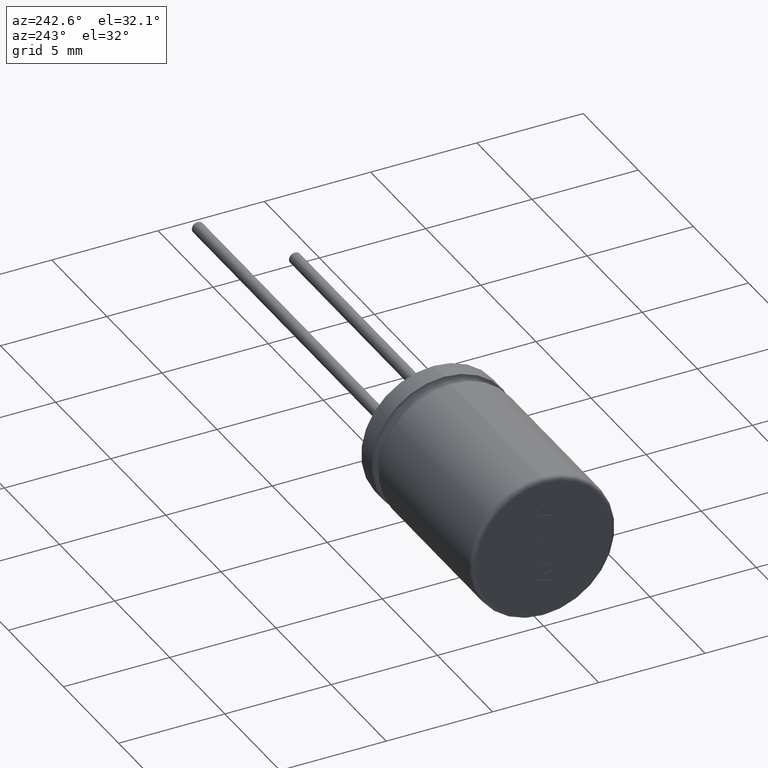
[diagram: clean part render]
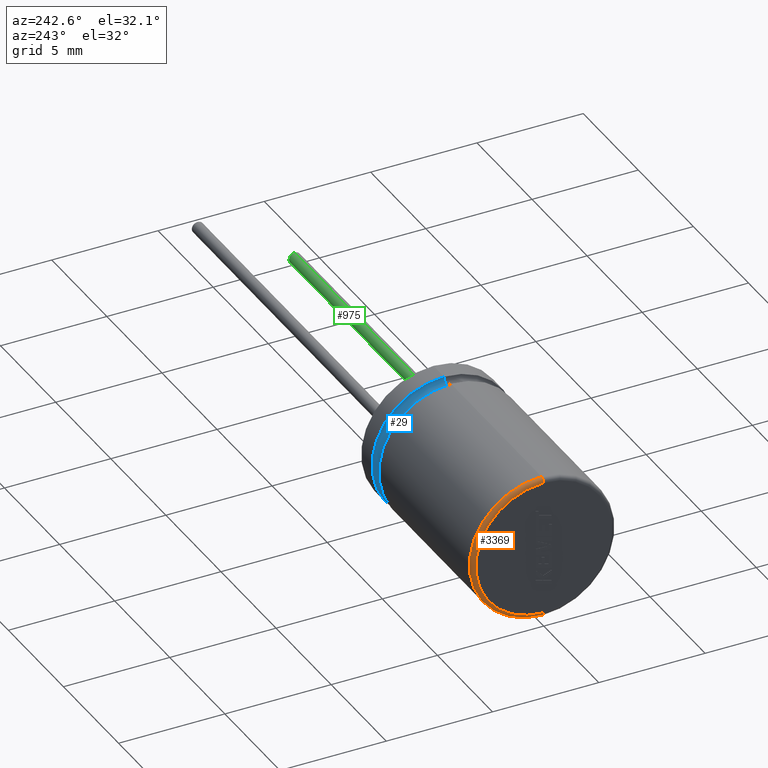
[diagram: same view with three faces highlighted in distinct colors, each labeled with its STEP entity id]
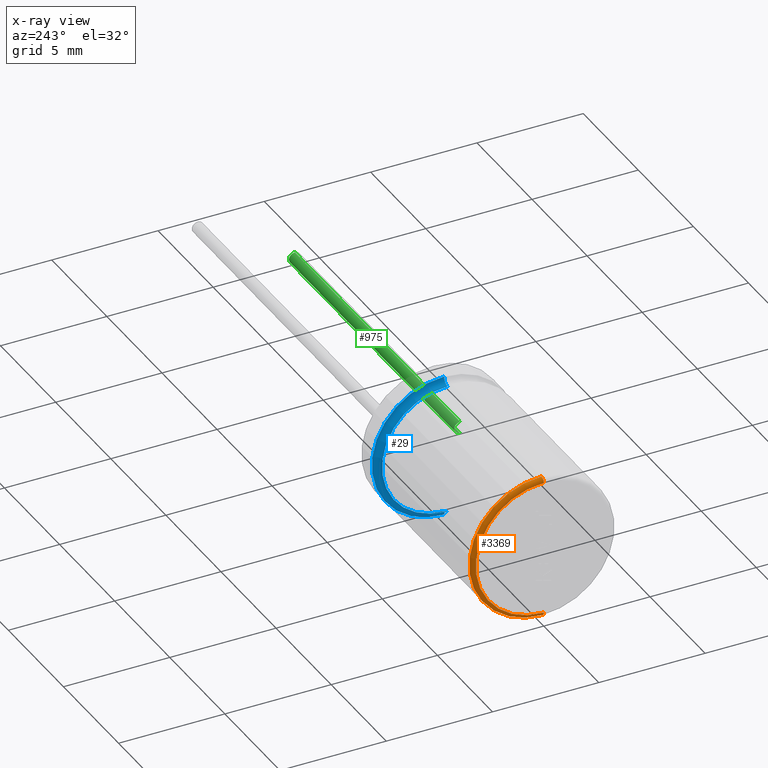
[diagram: x-ray of the same camera — body ghosted, the three highlighted faces saturated]
A machine part, auxiliary view with three faces highlighted in distinct colors.
The next image is the same camera in x-ray (body ghosted, the three faces saturated) — at least one of them is partly hidden behind the body in this view.
Their STEP definitions:

[orange] entity #3369 — the highlighted toroidal blend (fillet) surface has major radius 3.2 mm and minor (blend) radius 0.2 mm.
#6 = CARTESIAN_POINT ( 'NONE',  ( 0.0000000000000000000, 0.0000000000000000000, 0.0000000000000000000 ) ) ;
#113 = AXIS2_PLACEMENT_3D ( 'NONE', #216, #715, #2581 ) ;
#216 = CARTESIAN_POINT ( 'NONE',  ( 0.2000000000000005100, 0.0000000000000000000, -3.199999999999999700 ) ) ;
#279 = ORIENTED_EDGE ( 'NONE', *, *, #3379, .F. ) ;
#289 = CARTESIAN_POINT ( 'NONE',  ( 0.0000000000000000000, 4.041334437186265000E-016, 3.199999999999999700 ) ) ;
#463 = CARTESIAN_POINT ( 'NONE',  ( 0.0000000000000000000, 0.0000000000000000000, -3.199999999999999700 ) ) ;
#597 = DIRECTION ( 'NONE',  ( 0.0000000000000000000, 1.224646799147353200E-016, 1.000000000000000000 ) ) ;
#715 = DIRECTION ( 'NONE',  ( 0.0000000000000000000, -1.000000000000000000, 0.0000000000000000000 ) ) ;
#736 = VERTEX_POINT ( 'NONE', #289 ) ;
#1004 = VERTEX_POINT ( 'NONE', #463 ) ;
#1081 = EDGE_CURVE ( 'NONE', #736, #1004, #1278, .T. ) ;
#1210 = AXIS2_PLACEMENT_3D ( 'NONE', #3123, #2820, #1235 ) ;
#1235 = DIRECTION ( 'NONE',  ( 0.0000000000000000000, 0.0000000000000000000, -1.000000000000000000 ) ) ;
#1278 = CIRCLE ( 'NONE', #1421, 3.199999999999999700 ) ;
#1369 = AXIS2_PLACEMENT_3D ( 'NONE', #2514, #3317, #3328 ) ;
#1421 = AXIS2_PLACEMENT_3D ( 'NONE', #6, #1821, #2633 ) ;
#1581 = CARTESIAN_POINT ( 'NONE',  ( 0.2000000000000005100, 0.0000000000000000000, 3.399999999999999900 ) ) ;
#1621 = CIRCLE ( 'NONE', #1210, 3.399999999999999900 ) ;
#1624 = ORIENTED_EDGE ( 'NONE', *, *, #3225, .T. ) ;
#1752 = FACE_OUTER_BOUND ( 'NONE', #2014, .T. ) ;
#1821 = DIRECTION ( 'NONE',  ( -1.000000000000000000, -0.0000000000000000000, -0.0000000000000000000 ) ) ;
#1855 = CIRCLE ( 'NONE', #113, 0.2000000000000000900 ) ;
#1934 = VERTEX_POINT ( 'NONE', #1581 ) ;
#2014 = EDGE_LOOP ( 'NONE', ( #2216, #1624, #279, #2606 ) ) ;
#2216 = ORIENTED_EDGE ( 'NONE', *, *, #1081, .F. ) ;
#2272 = VERTEX_POINT ( 'NONE', #2571 ) ;
#2461 = DIRECTION ( 'NONE',  ( 0.0000000000000000000, 1.000000000000000000, -1.224646799147353200E-016 ) ) ;
#2514 = CARTESIAN_POINT ( 'NONE',  ( 0.2000000000000005100, 0.0000000000000000000, 0.0000000000000000000 ) ) ;
#2571 = CARTESIAN_POINT ( 'NONE',  ( 0.2000000000000005100, 4.163799117101000600E-016, -3.399999999999999900 ) ) ;
#2581 = DIRECTION ( 'NONE',  ( 0.0000000000000000000, 0.0000000000000000000, -1.000000000000000000 ) ) ;
#2606 = ORIENTED_EDGE ( 'NONE', *, *, #2726, .F. ) ;
#2633 = DIRECTION ( 'NONE',  ( 0.0000000000000000000, 0.0000000000000000000, -1.000000000000000000 ) ) ;
#2726 = EDGE_CURVE ( 'NONE', #1004, #2272, #1855, .T. ) ;
#2820 = DIRECTION ( 'NONE',  ( 1.000000000000000000, 0.0000000000000000000, 0.0000000000000000000 ) ) ;
#2994 = AXIS2_PLACEMENT_3D ( 'NONE', #3025, #2461, #597 ) ;
#3012 = TOROIDAL_SURFACE ( 'NONE', #1369, 3.199999999999999700, 0.2000000000000000100 ) ;
#3025 = CARTESIAN_POINT ( 'NONE',  ( 0.2000000000000005100, 3.918869757271530000E-016, 3.199999999999999700 ) ) ;
#3098 = CIRCLE ( 'NONE', #2994, 0.2000000000000000900 ) ;
#3123 = CARTESIAN_POINT ( 'NONE',  ( 0.2000000000000005100, 0.0000000000000000000, 0.0000000000000000000 ) ) ;
#3225 = EDGE_CURVE ( 'NONE', #736, #1934, #3098, .T. ) ;
#3317 = DIRECTION ( 'NONE',  ( 1.000000000000000000, 0.0000000000000000000, 0.0000000000000000000 ) ) ;
#3328 = DIRECTION ( 'NONE',  ( 0.0000000000000000000, 0.0000000000000000000, -1.000000000000000000 ) ) ;
#3369 = ADVANCED_FACE ( 'NONE', ( #1752 ), #3012, .T. ) ;
#3379 = EDGE_CURVE ( 'NONE', #2272, #1934, #1621, .T. ) ;

[blue] entity #29 — the highlighted toroidal blend (fillet) surface has major radius 3.4 mm and minor (blend) radius 0.3125 mm.
#29 = ADVANCED_FACE ( 'NONE', ( #436 ), #2874, .F. ) ;
#71 = CARTESIAN_POINT ( 'NONE',  ( 8.724999999999999600, 4.163799117101000600E-016, 3.399999999999999900 ) ) ;
#282 = CIRCLE ( 'NONE', #3337, 0.3125000000000002800 ) ;
#379 = ORIENTED_EDGE ( 'NONE', *, *, #3125, .T. ) ;
#386 = DIRECTION ( 'NONE',  ( 0.0000000000000000000, 0.0000000000000000000, -1.000000000000000000 ) ) ;
#436 = FACE_OUTER_BOUND ( 'NONE', #2321, .T. ) ;
#527 = CIRCLE ( 'NONE', #871, 0.3125000000000002800 ) ;
#562 = VERTEX_POINT ( 'NONE', #2531 ) ;
#647 = VERTEX_POINT ( 'NONE', #721 ) ;
#696 = CARTESIAN_POINT ( 'NONE',  ( 8.724999999999999600, 0.0000000000000000000, -3.399999999999999900 ) ) ;
#721 = CARTESIAN_POINT ( 'NONE',  ( 8.724999999999999600, 3.781096992367452200E-016, 3.087499999999999500 ) ) ;
#846 = CIRCLE ( 'NONE', #3342, 3.087499999999999500 ) ;
#871 = AXIS2_PLACEMENT_3D ( 'NONE', #71, #1664, #1401 ) ;
#972 = AXIS2_PLACEMENT_3D ( 'NONE', #2261, #3067, #2027 ) ;
#1401 = DIRECTION ( 'NONE',  ( 0.0000000000000000000, 1.224646799147352500E-016, 1.000000000000000000 ) ) ;
#1413 = DIRECTION ( 'NONE',  ( 0.0000000000000000000, 0.0000000000000000000, -1.000000000000000000 ) ) ;
#1418 = CIRCLE ( 'NONE', #972, 3.399999999999999900 ) ;
#1540 = EDGE_CURVE ( 'NONE', #562, #3075, #1418, .T. ) ;
#1664 = DIRECTION ( 'NONE',  ( 0.0000000000000000000, 1.000000000000000000, -1.224646799147353200E-016 ) ) ;
#1924 = ORIENTED_EDGE ( 'NONE', *, *, #2399, .F. ) ;
#1928 = VERTEX_POINT ( 'NONE', #2642 ) ;
#1951 = DIRECTION ( 'NONE',  ( 1.000000000000000000, -0.0000000000000000000, -0.0000000000000000000 ) ) ;
#2027 = DIRECTION ( 'NONE',  ( 0.0000000000000000000, 0.0000000000000000000, -1.000000000000000000 ) ) ;
#2076 = EDGE_CURVE ( 'NONE', #562, #1928, #282, .T. ) ;
#2261 = CARTESIAN_POINT ( 'NONE',  ( 9.037499999999999600, 0.0000000000000000000, 0.0000000000000000000 ) ) ;
#2298 = DIRECTION ( 'NONE',  ( -0.0000000000000000000, -1.000000000000000000, -0.0000000000000000000 ) ) ;
#2321 = EDGE_LOOP ( 'NONE', ( #2625, #379, #1924, #2838 ) ) ;
#2333 = AXIS2_PLACEMENT_3D ( 'NONE', #3005, #1951, #1413 ) ;
#2399 = EDGE_CURVE ( 'NONE', #3075, #647, #527, .T. ) ;
#2531 = CARTESIAN_POINT ( 'NONE',  ( 9.037499999999999600, 4.163799117101000600E-016, -3.399999999999999900 ) ) ;
#2562 = DIRECTION ( 'NONE',  ( 0.0000000000000000000, 0.0000000000000000000, -1.000000000000000000 ) ) ;
#2625 = ORIENTED_EDGE ( 'NONE', *, *, #2076, .T. ) ;
#2642 = CARTESIAN_POINT ( 'NONE',  ( 8.724999999999999600, 0.0000000000000000000, -3.087499999999999500 ) ) ;
#2705 = DIRECTION ( 'NONE',  ( 1.000000000000000000, -0.0000000000000000000, -0.0000000000000000000 ) ) ;
#2838 = ORIENTED_EDGE ( 'NONE', *, *, #1540, .F. ) ;
#2874 = TOROIDAL_SURFACE ( 'NONE', #2333, 3.399999999999999900, 0.3125000000000002800 ) ;
#2939 = CARTESIAN_POINT ( 'NONE',  ( 9.037499999999999600, 0.0000000000000000000, 3.399999999999999900 ) ) ;
#3005 = CARTESIAN_POINT ( 'NONE',  ( 8.724999999999999600, 0.0000000000000000000, 0.0000000000000000000 ) ) ;
#3067 = DIRECTION ( 'NONE',  ( 1.000000000000000000, -0.0000000000000000000, -0.0000000000000000000 ) ) ;
#3075 = VERTEX_POINT ( 'NONE', #2939 ) ;
#3125 = EDGE_CURVE ( 'NONE', #1928, #647, #846, .T. ) ;
#3241 = CARTESIAN_POINT ( 'NONE',  ( 8.724999999999999600, 0.0000000000000000000, 0.0000000000000000000 ) ) ;
#3337 = AXIS2_PLACEMENT_3D ( 'NONE', #696, #2298, #2562 ) ;
#3342 = AXIS2_PLACEMENT_3D ( 'NONE', #3241, #2705, #386 ) ;

[green] entity #975 — the highlighted cylindrical surface (edge-blend (fillet) strip) has radius 0.275 mm, axis along (-1, -0, -0).
#65 = VERTEX_POINT ( 'NONE', #1987 ) ;
#160 = ORIENTED_EDGE ( 'NONE', *, *, #3348, .T. ) ;
#254 = VERTEX_POINT ( 'NONE', #286 ) ;
#268 = VECTOR ( 'NONE', #2295, 1000.000000000000000 ) ;
#286 = CARTESIAN_POINT ( 'NONE',  ( 25.00000000000000000, -1.250000000000000000, -0.2750000000000000200 ) ) ;
#442 = VECTOR ( 'NONE', #677, 1000.000000000000000 ) ;
#619 = EDGE_CURVE ( 'NONE', #1596, #2887, #869, .T. ) ;
#627 = DIRECTION ( 'NONE',  ( 1.000000000000000000, 0.0000000000000000000, 0.0000000000000000000 ) ) ;
#677 = DIRECTION ( 'NONE',  ( -1.000000000000000000, -0.0000000000000000000, -0.0000000000000000000 ) ) ;
#728 = CIRCLE ( 'NONE', #2205, 0.2750000000000000200 ) ;
#803 = LINE ( 'NONE', #1208, #442 ) ;
#810 = DIRECTION ( 'NONE',  ( 1.000000000000000000, 0.0000000000000000000, 0.0000000000000000000 ) ) ;
#848 = ORIENTED_EDGE ( 'NONE', *, *, #1942, .F. ) ;
#869 = LINE ( 'NONE', #2551, #268 ) ;
#975 = ADVANCED_FACE ( 'NONE', ( #2902 ), #1431, .T. ) ;
#1208 = CARTESIAN_POINT ( 'NONE',  ( 25.00000000000000000, -1.250000000000000000, -0.2750000000000000200 ) ) ;
#1431 = CYLINDRICAL_SURFACE ( 'NONE', #2744, 0.2750000000000000200 ) ;
#1519 = CARTESIAN_POINT ( 'NONE',  ( 10.00000000000000000, -1.250000000000000000, 0.2750000000000000200 ) ) ;
#1596 = VERTEX_POINT ( 'NONE', #3363 ) ;
#1771 = EDGE_LOOP ( 'NONE', ( #848, #160, #2816, #1909 ) ) ;
#1830 = AXIS2_PLACEMENT_3D ( 'NONE', #2181, #627, #3247 ) ;
#1909 = ORIENTED_EDGE ( 'NONE', *, *, #619, .F. ) ;
#1942 = EDGE_CURVE ( 'NONE', #254, #1596, #728, .T. ) ;
#1987 = CARTESIAN_POINT ( 'NONE',  ( 10.00000000000000000, -1.250000000000000000, -0.2750000000000000200 ) ) ;
#2181 = CARTESIAN_POINT ( 'NONE',  ( 10.00000000000000000, -1.250000000000000000, 0.0000000000000000000 ) ) ;
#2205 = AXIS2_PLACEMENT_3D ( 'NONE', #2408, #810, #2934 ) ;
#2227 = DIRECTION ( 'NONE',  ( -1.000000000000000000, -0.0000000000000000000, -0.0000000000000000000 ) ) ;
#2295 = DIRECTION ( 'NONE',  ( -1.000000000000000000, -0.0000000000000000000, -0.0000000000000000000 ) ) ;
#2342 = DIRECTION ( 'NONE',  ( 0.0000000000000000000, 0.0000000000000000000, 1.000000000000000000 ) ) ;
#2408 = CARTESIAN_POINT ( 'NONE',  ( 25.00000000000000000, -1.250000000000000000, 0.0000000000000000000 ) ) ;
#2464 = CIRCLE ( 'NONE', #1830, 0.2750000000000000200 ) ;
#2492 = EDGE_CURVE ( 'NONE', #65, #2887, #2464, .T. ) ;
#2551 = CARTESIAN_POINT ( 'NONE',  ( 25.00000000000000000, -1.250000000000000000, 0.2750000000000000200 ) ) ;
#2744 = AXIS2_PLACEMENT_3D ( 'NONE', #3321, #2227, #2342 ) ;
#2816 = ORIENTED_EDGE ( 'NONE', *, *, #2492, .T. ) ;
#2887 = VERTEX_POINT ( 'NONE', #1519 ) ;
#2902 = FACE_OUTER_BOUND ( 'NONE', #1771, .T. ) ;
#2934 = DIRECTION ( 'NONE',  ( 0.0000000000000000000, 0.0000000000000000000, -1.000000000000000000 ) ) ;
#3247 = DIRECTION ( 'NONE',  ( 0.0000000000000000000, 0.0000000000000000000, -1.000000000000000000 ) ) ;
#3321 = CARTESIAN_POINT ( 'NONE',  ( 25.00000000000000000, -1.250000000000000000, 0.0000000000000000000 ) ) ;
#3348 = EDGE_CURVE ( 'NONE', #254, #65, #803, .T. ) ;
#3363 = CARTESIAN_POINT ( 'NONE',  ( 25.00000000000000000, -1.250000000000000000, 0.2750000000000000200 ) ) ;